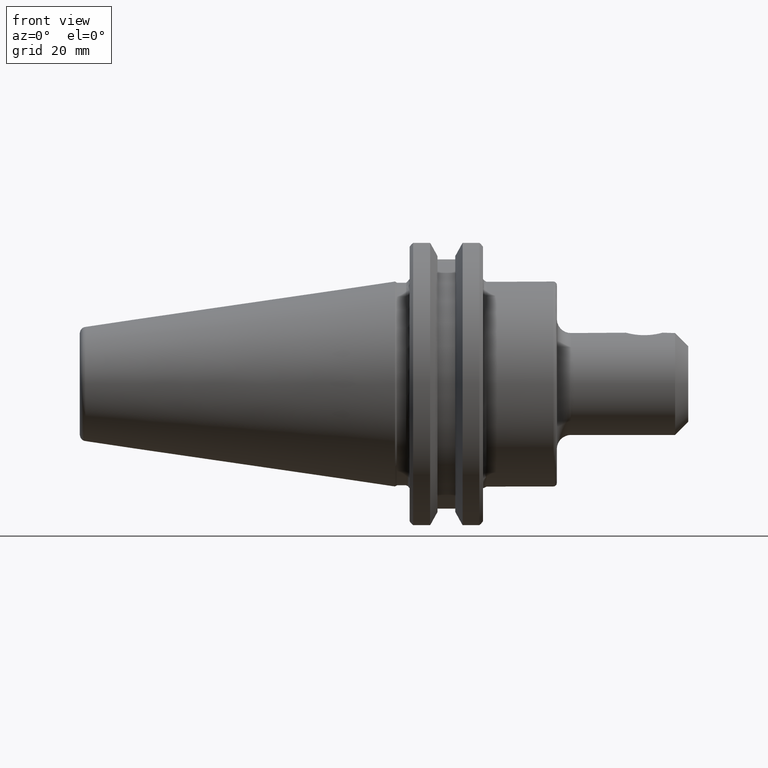
[diagram: clean part render]
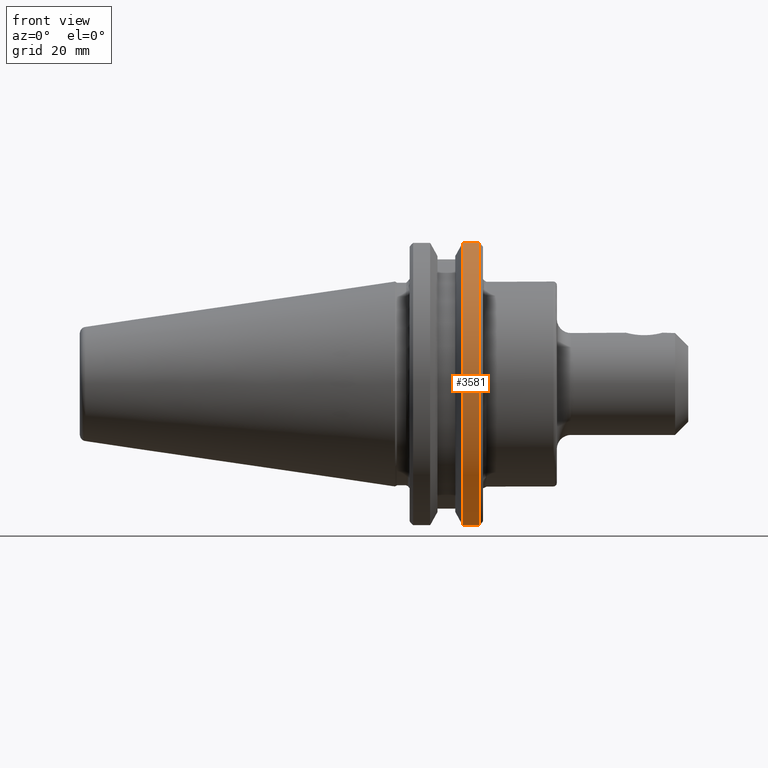
[diagram: same view with one face highlighted and labeled with its STEP entity id]
A machine part, front view. The second image highlights one B-rep face of the part: STEP entity #3581.
In plain terms, the highlighted cylindrical surface (partial cylindrical patch) has radius 31.75 mm, axis along (1, 0, 0).
Its self-contained STEP definition (entity closure, byte-faithful):
#718=CARTESIAN_POINT('',(0.72,-0.339628138321232,-1.20297661143534));
#719=VERTEX_POINT('',#718);
#733=CARTESIAN_POINT('',(0.577173872225885,-0.339628138321232,-1.20297661143534));
#734=VERTEX_POINT('',#733);
#735=CARTESIAN_POINT('',(0.72,-0.339628138321232,-1.20297661143534));
#736=DIRECTION('',(-1.0,0.0,0.0));
#737=VECTOR('',#736,0.142826127774115);
#738=LINE('',#735,#737);
#739=EDGE_CURVE('',#719,#734,#738,.T.);
#3233=CARTESIAN_POINT('',(0.72,-0.339628138321233,1.20297661143534));
#3234=VERTEX_POINT('',#3233);
#3248=CARTESIAN_POINT('',(0.72,-7.690535E-037,0.0));
#3249=DIRECTION('',(1.0,-1.624514E-013,0.0));
#3250=DIRECTION('',(-1.624514E-013,-1.0,0.0));
#3251=AXIS2_PLACEMENT_3D('',#3248,#3249,#3250);
#3252=CIRCLE('',#3251,1.25);
#3253=EDGE_CURVE('',#3234,#719,#3252,.T.);
#3557=CARTESIAN_POINT('',(0.4375,-1.098232E-036,0.0));
#3558=DIRECTION('',(1.0,1.165233E-036,0.0));
#3559=DIRECTION('',(1.624514E-013,1.0,0.0));
#3560=AXIS2_PLACEMENT_3D('',#3557,#3558,#3559);
#3561=CYLINDRICAL_SURFACE('',#3560,1.25);
#3562=ORIENTED_EDGE('',*,*,#739,.F.);
#3563=ORIENTED_EDGE('',*,*,#3253,.F.);
#3564=CARTESIAN_POINT('',(0.577173872225885,-0.339628138321233,1.20297661143534));
#3565=VERTEX_POINT('',#3564);
#3566=CARTESIAN_POINT('',(0.577173872225885,-0.339628138321233,1.20297661143534));
#3567=DIRECTION('',(1.0,0.0,0.0));
#3568=VECTOR('',#3567,0.142826127774115);
#3569=LINE('',#3566,#3568);
#3570=EDGE_CURVE('',#3565,#3234,#3569,.T.);
#3571=ORIENTED_EDGE('',*,*,#3570,.F.);
#3572=CARTESIAN_POINT('',(0.577173872225885,-9.354791E-037,0.0));
#3573=DIRECTION('',(1.0,-1.624514E-013,0.0));
#3574=DIRECTION('',(1.624514E-013,1.0,0.0));
#3575=AXIS2_PLACEMENT_3D('',#3572,#3573,#3574);
#3576=CIRCLE('',#3575,1.25);
#3577=EDGE_CURVE('',#3565,#734,#3576,.T.);
#3578=ORIENTED_EDGE('',*,*,#3577,.T.);
#3579=EDGE_LOOP('',(#3562,#3563,#3571,#3578));
#3580=FACE_OUTER_BOUND('',#3579,.T.);
#3581=ADVANCED_FACE('',(#3580),#3561,.T.);